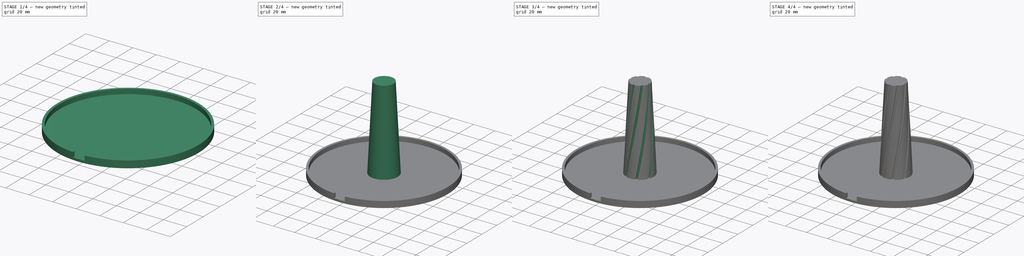
[diagram: build sequence overview — one tinted view per stage of 4, left to right]
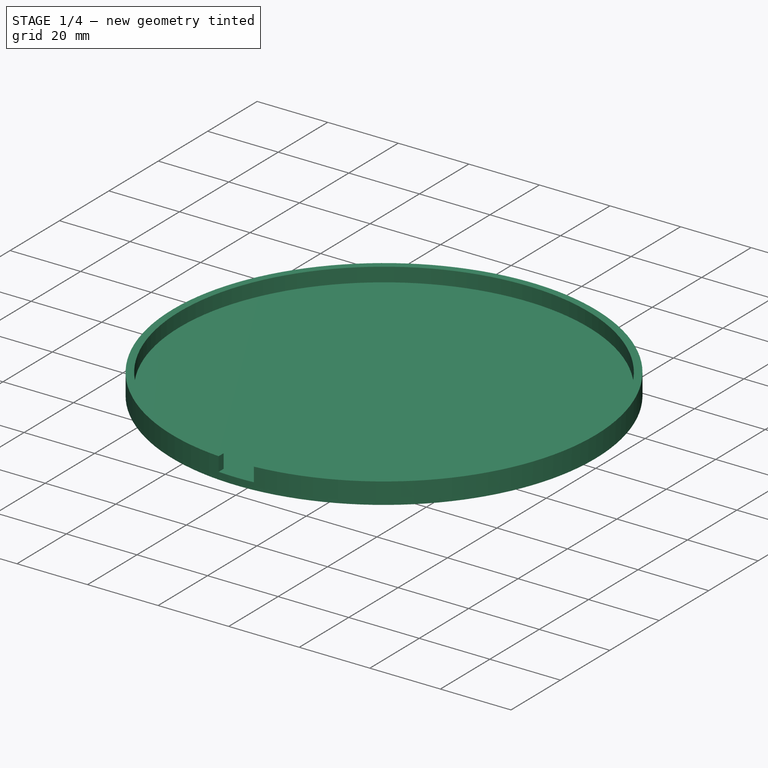
[diagram: stage 1 of 4 — iso view after this stage's code; geometry added in this stage tinted green]
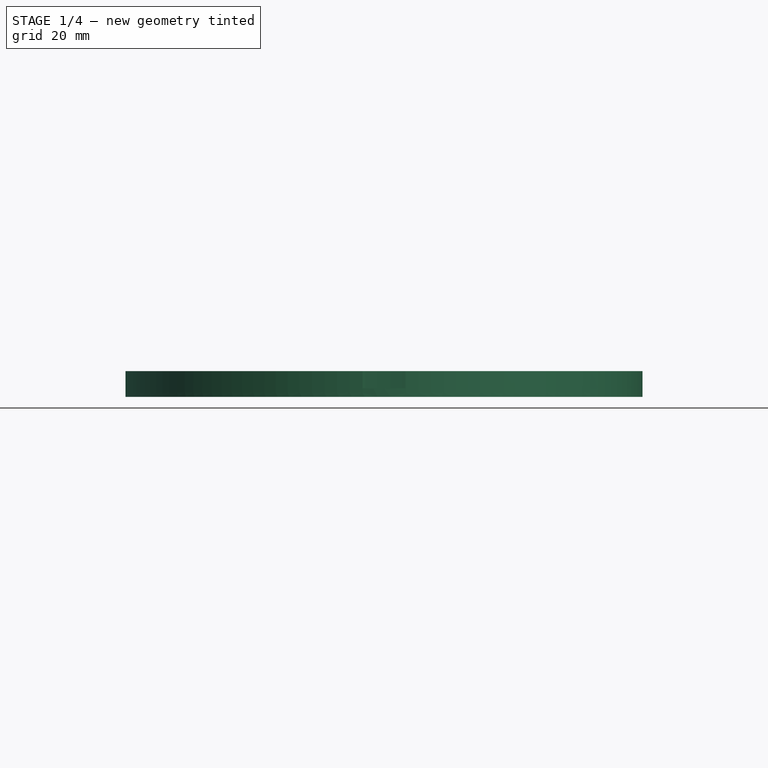
[diagram: stage 1 of 4 — front view after this stage's code; geometry added in this stage tinted green]
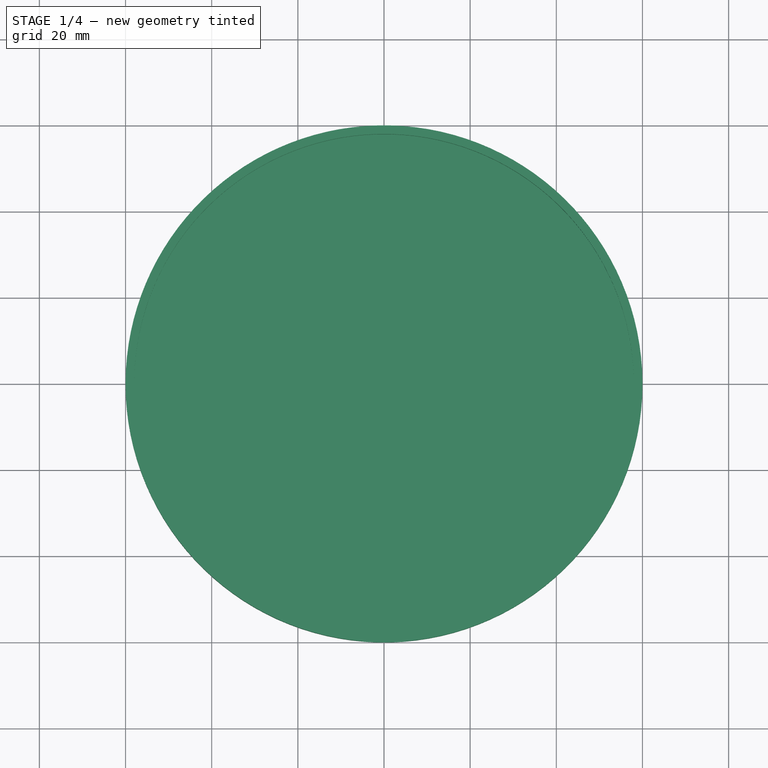
[diagram: stage 1 of 4 — top view after this stage's code; geometry added in this stage tinted green]
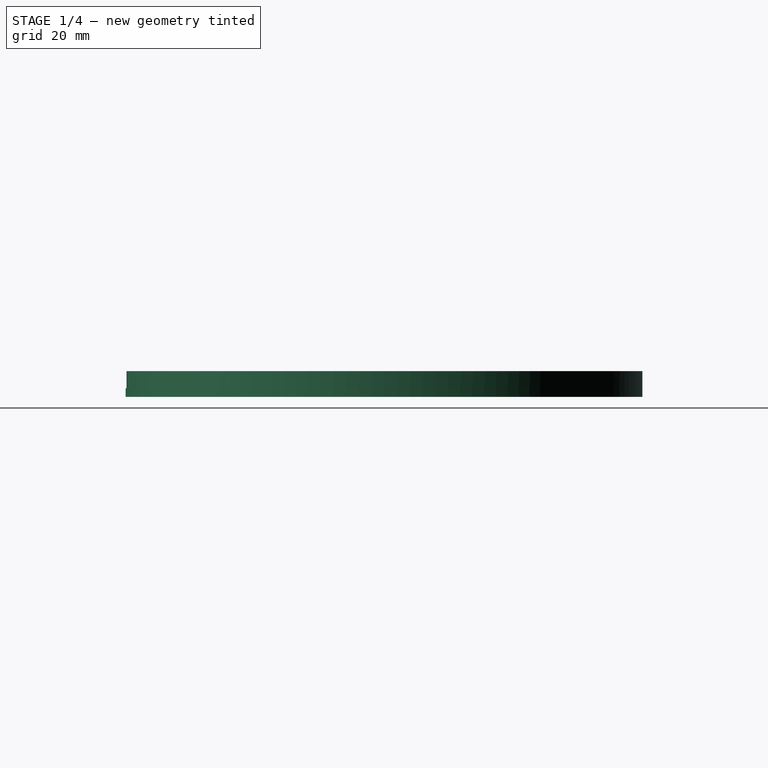
[diagram: stage 1 of 4 — right view after this stage's code; geometry added in this stage tinted green]
FCSTD DOCUMENT  (FreeCAD 2023.131R26244 +5365 (Git))
Label: Chemistry Glassware Drying Stand
License: All rights reserved
LicenseURL: http://en.wikipedia.org/wiki/All_rights_reserved
objects: Sketcher::SketchObject×6, PartDesign::Pad×4, PartDesign::Body×2, Spreadsheet::Sheet×1, PartDesign::AdditiveCone×1, PartDesign::SubtractiveHelix×1, PartDesign::PolarPattern×1, PartDesign::SubtractiveCone×1, PartDesign::Hole×1, PartDesign::Fillet×1
note: 44 computed .brp shape members not serialized (recipe doc carries the construction recipe); baked Part::Feature solids carry a one-line shape summary decoded from their .brp

FEATURE [Sketcher::SketchObject] Sketch
  ArcFitTolerance = 1e-06
  AttachmentSupport = -> [XY_Plane]
  ExternalBSplineMaxDegree = 5
  ExternalBSplineTolerance = 0.0001
  FullyConstrained = true
  InternalTolerance = 1e-06
  InvalidShape = false
  MakeInternals = false
  MapMode = 5
  Support = -> [XY_Plane]
  TreeRank = 12
  ValidateShape = true
  expr: Constraints[1] = <<Parameters>>.Base_Diameter
  sketch-geometry (1):
    g0: Circle CenterX=0 CenterY=0 CenterZ=0 NormalX=0 NormalY=0 NormalZ=1 AngleXU=0 Radius=60
  constraints (2):
    c: Coincident(g0,g-1)
    c: Diameter(g0) = 120
FEATURE [Spreadsheet::Sheet] Spreadsheet  label="Parameters"
  PythonMode = false
  ShowCells = 0
  TreeRank = 10
  cells = A2=Base Diameter; B2(Base_Diameter)=120; C2=This should be wide enough that the inverted glassware doesn't tip over.; F2=Top Diameter; G2=Bottom Diameter; H2=Height; A3=Wall Thickness; B3(Wall_Thickness)=1; C3=1mm should be considered the thinnest. Other thicknesses might be useful.; E3=24/40 Ground Taper; F3=18; G3=26; H3=80; A4=Side Wall Height; B4(Side_Wall_Height)=4; C4=The wall around the perimeter of the base to keep water from going everywhere.; A5=Side Wall Width; B5(Side_Wall_Width)=2; C5=Adjust this if the side wall delaminates from the base during printing.; A6=Drain Opening Width; B6(Drain_Opening_Width)=10; C6=The width of the opening in the side walls to let the water drain out.; A7=Cone Bottom Diameter; B7(Cone_Bottom_Diameter)=26; C7=Slightly bigger than the largest opening in the glassware you  plan to use.; A8=Cone Top Diameter; B8(Cone_Top_Diameter)=18; C8=Slightly smallerr than the smallest opening in the glassware you  plan to use.; A9=Cone Height; B9(Cone_Height)=80; C9=Many values will work here. The bigger the difference in the base and top of the code should result in a taller cone.; A10=Cone Angle; B10(Cone_Angle)=5; C10=Adjust until all drainage slots are visible from top to bottom.; A11=Drainage Slot Count; B11(Drainage_Slot_Count)=8; C11=The number of drainage slots in the cone.; A12=Draining Hole Diameter; B12(Draining_Slot_Diameter)=2; C12=The size of the hole that creates the drainage slots.; A13=Thread Width; B13(Thread_Width)=10; C13=More-or-less determines the size of the slots along the length of the cone.; A14=Peg Diameter; B14(Peg_Diameter)=15; A15=Peg Length; B15(Peg_Length)=15
FEATURE [PartDesign::Pad] Pad  label="Base Body"
  AddSubType = 0
  AlongSketchNormal = false
  AutoTaperInnerAngle = true
  CheckUpToFaceLimits = true
  ClaimChildren = false
  Direction = (0,0,1)
  Fit = 0
  FitJoin = 0
  InnerFit = 0
  InnerFitJoin = 0
  InvalidShape = false
  Length = 2
  Length2 = 100
  Linearize = true
  NewSolid = false
  Profile = -> Sketch
  Suppress = false
  TaperInnerAngle = 0
  TaperInnerAngleRev = 0
  TreeRank = 13
  Type = 0
  ValidateShape = true
  _ProfileBasedVersion = 1
  expr: Length = max(2, <<Parameters>>.Wall_Thickness)
FEATURE [Sketcher::SketchObject] Sketch001
  ArcFitTolerance = 1e-06
  ExternalBSplineMaxDegree = 5
  ExternalBSplineTolerance = 0.0001
  FullyConstrained = true
  InternalTolerance = 1e-06
  InvalidShape = false
  MakeInternals = false
  MapMode = 5
  Placement = pos=(0,0,1) rot=(0,0,1;0rad)
  TreeRank = 15
  ValidateShape = true
  expr: Constraints[2] = <<Parameters>>.Base_Diameter - 2 * <<Parameters>>.Side_Wall_Width
  expr: Constraints[3] = <<Parameters>>.Base_Diameter
  expr: Constraints[6] = <<Parameters>>.Drain_Opening_Width / 2
  expr: Constraints[7] = <<Parameters>>.Drain_Opening_Width / 2
  sketch-geometry (4):
    g0: ArcOfCircle CenterX=0 CenterY=0 CenterZ=0 NormalX=0 NormalY=0 NormalZ=1 AngleXU=0 Radius=58 StartAngle=4.7987 EndAngle=10.9093
    g1: ArcOfCircle CenterX=0 CenterY=0 CenterZ=0 NormalX=0 NormalY=0 NormalZ=1 AngleXU=0 Radius=60 StartAngle=4.79582 EndAngle=10.9121
    g2: LineSegment StartX=5 StartY=-57.7841 StartZ=0 EndX=5 EndY=-59.7913 EndZ=0
    g3: LineSegment StartX=-5 StartY=-57.7841 StartZ=0 EndX=-5 EndY=-59.7913 EndZ=0
  constraints (12):
    c: Coincident(g0,g-1)
    c: Coincident(g1,g0)
    c: Diameter(g0) = 116
    c: Diameter(g1) = 120
    c: Vertical(g2)
    c: Vertical(g3)
    c: DistanceX(g3,g0) = 5
    c: DistanceX(g0,g2) = 5
    c: Coincident(g1,g3)
    c: Coincident(g1,g2)
    c: Coincident(g0,g3)
    c: Coincident(g0,g2)
FEATURE [PartDesign::Pad] Pad001  label="Side Wall"
  AddSubType = 0
  AlongSketchNormal = false
  AutoTaperInnerAngle = true
  BaseFeature = -> Pad
  CheckUpToFaceLimits = true
  ClaimChildren = false
  Direction = (0,0,1)
  Fit = 0
  FitJoin = 0
  InnerFit = 0
  InnerFitJoin = 0
  InvalidShape = false
  Length = 5
  Length2 = 100
  Linearize = true
  NewSolid = false
  Profile = -> Sketch001
  Suppress = false
  TaperInnerAngle = 0
  TaperInnerAngleRev = 0
  TreeRank = 22
  Type = 0
  ValidateShape = true
  _ProfileBasedVersion = 1
  expr: Length = <<Parameters>>.Wall_Thickness + <<Parameters>>.Side_Wall_Height
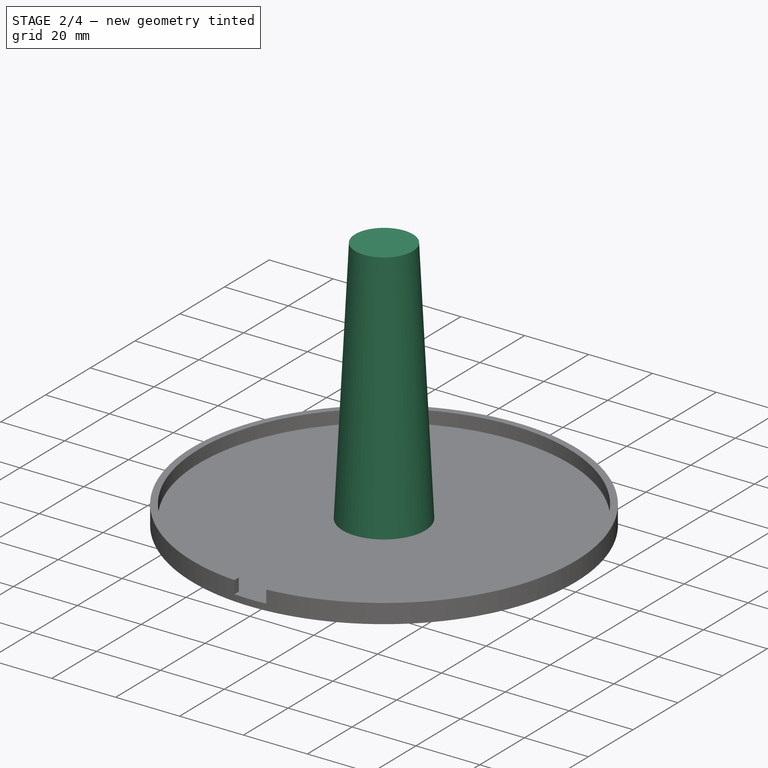
[diagram: stage 2 of 4 — iso view after this stage's code; geometry added in this stage tinted green]
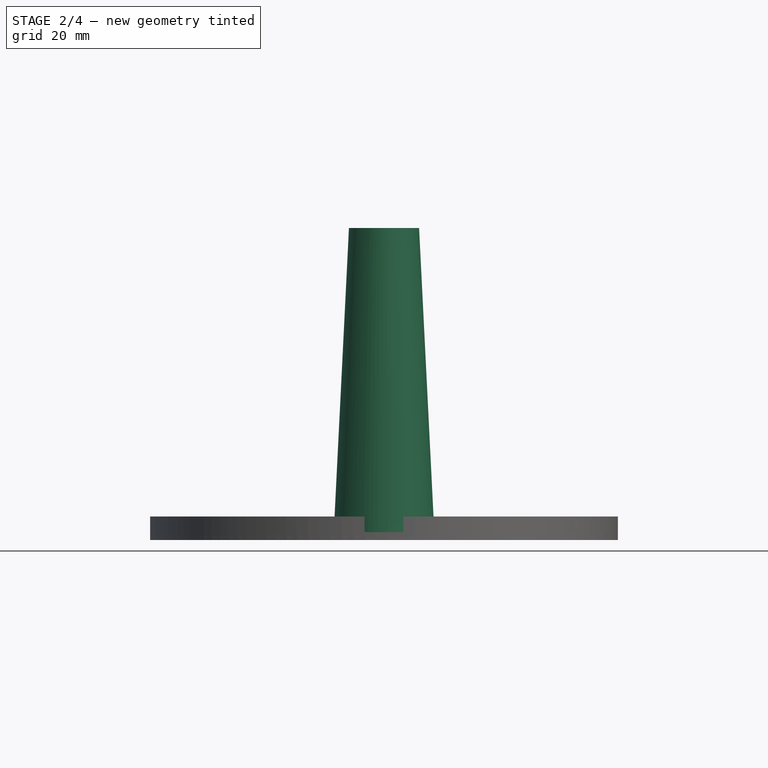
[diagram: stage 2 of 4 — front view after this stage's code; geometry added in this stage tinted green]
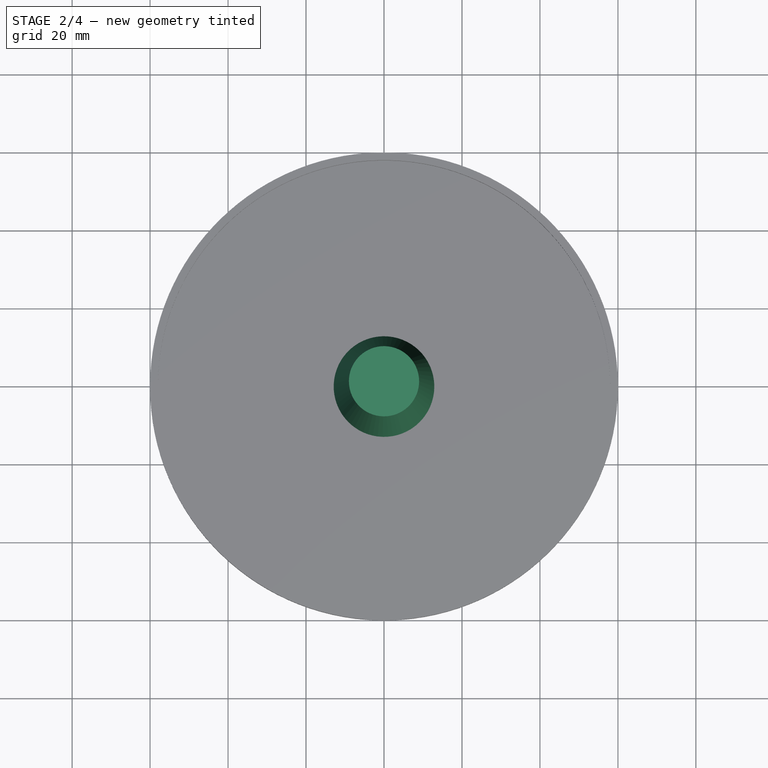
[diagram: stage 2 of 4 — top view after this stage's code; geometry added in this stage tinted green]
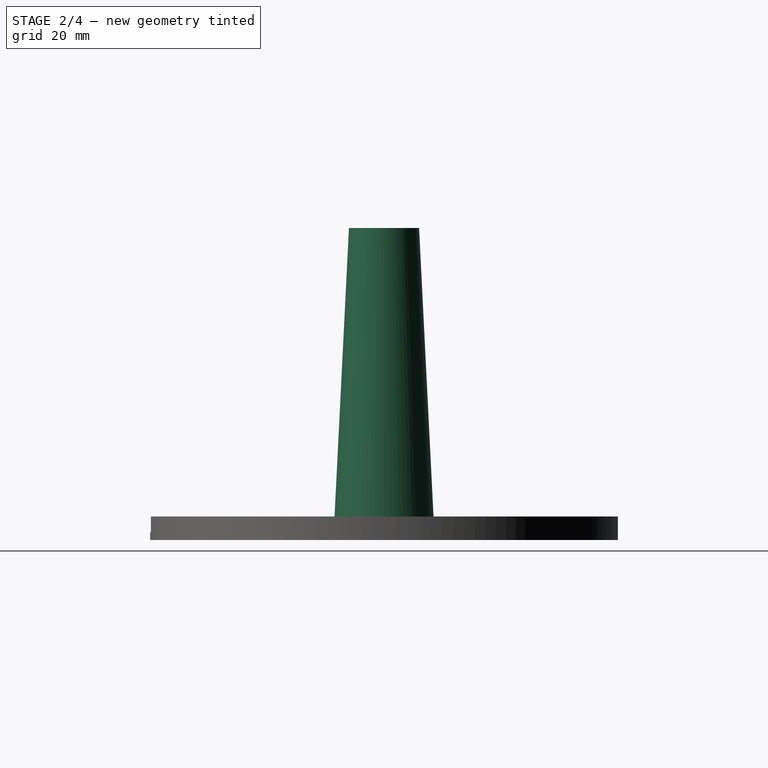
[diagram: stage 2 of 4 — right view after this stage's code; geometry added in this stage tinted green]
FEATURE [Sketcher::SketchObject] Sketch002
  ArcFitTolerance = 1e-06
  AttachmentSupport = -> [Pad001]
  ExternalBSplineMaxDegree = 5
  ExternalBSplineTolerance = 0.0001
  FullyConstrained = true
  InternalTolerance = 1e-06
  InvalidShape = false
  MakeInternals = false
  MapMode = 5
  Placement = pos=(0,0,2) rot=(0,0,1;0rad)
  Support = -> [Pad001]
  TreeRank = 23
  ValidateShape = true
  expr: Constraints[1] = <<Parameters>>.Peg_Diameter
  sketch-geometry (1):
    g0: Circle CenterX=0 CenterY=0 CenterZ=0 NormalX=0 NormalY=0 NormalZ=1 AngleXU=0 Radius=7.5
  constraints (2):
    c: Coincident(g0,g-1)
    c: Diameter(g0) = 15
FEATURE [PartDesign::Pad] Pad002  label="Peg"
  AddSubType = 0
  AlongSketchNormal = false
  AutoTaperInnerAngle = true
  BaseFeature = -> Pad001
  CheckUpToFaceLimits = true
  ClaimChildren = false
  Direction = (0,0,1)
  Fit = 0
  FitJoin = 0
  InnerFit = 0
  InnerFitJoin = 0
  InvalidShape = false
  Length = 15
  Length2 = 100
  Linearize = true
  NewSolid = false
  Profile = -> Sketch002
  Suppress = false
  TaperInnerAngle = 0
  TaperInnerAngleRev = 0
  TreeRank = 24
  Type = 0
  ValidateShape = true
  _ProfileBasedVersion = 1
  expr: Length = <<Parameters>>.Peg_Length
FEATURE [PartDesign::AdditiveCone] Cone  label="Cone Body"
  AddSubType = 0
  Angle = 360
  AttacherType = Attacher::AttachEngine3D
  AttachmentSupport = -> [XY_Plane001]
  Height = 80
  InvalidShape = false
  MapMode = 5
  NewSolid = false
  Radius1 = 13
  Radius2 = 9
  Support = -> [XY_Plane001]
  Suppress = false
  TreeRank = 35
  ValidateShape = true
  expr: Height = <<Parameters>>.Cone_Height
  expr: Radius1 = <<Parameters>>.Cone_Bottom_Diameter / 2
  expr: Radius2 = <<Parameters>>.Cone_Top_Diameter / 2
FEATURE [PartDesign::Body] Body001  label="Cone"
  AutoGroupSolids = false
  ClaimAllChildren = false
  ExportMode = 0
  Group = -> [Cone,Sketch005,Helix,PolarPattern,Cone001,Sketch006,Pad003,Sketch007,Hole]
  InvalidShape = false
  Origin = -> Origin001
  Tip = -> Hole
  TreeRank = 34
  ValidateShape = true
  _ExportChildren = -> [Cone,Helix,PolarPattern,Cone001,Pad003,Hole]
  _GroupVersion = 1
FEATURE [PartDesign::Fillet] Fillet
  AddSubType = 0
  Base = -> Pad002 [Face12]
  BaseFeature = -> Pad002
  InvalidShape = false
  NewSolid = false
  Radius = 1
  SupportTransform = false
  Suppress = false
  TreeRank = 49
  ValidateShape = true
FEATURE [PartDesign::Body] Body  label="Base"
  AutoGroupSolids = false
  ClaimAllChildren = false
  ExportMode = 0
  Group = -> [Sketch,Pad,Sketch001,Pad001,Sketch002,Pad002,Fillet]
  InvalidShape = false
  Origin = -> Origin
  Tip = -> Fillet
  TreeRank = 11
  ValidateShape = true
  _ExportChildren = -> [Pad,Pad001,Pad002,Fillet]
  _GroupVersion = 1
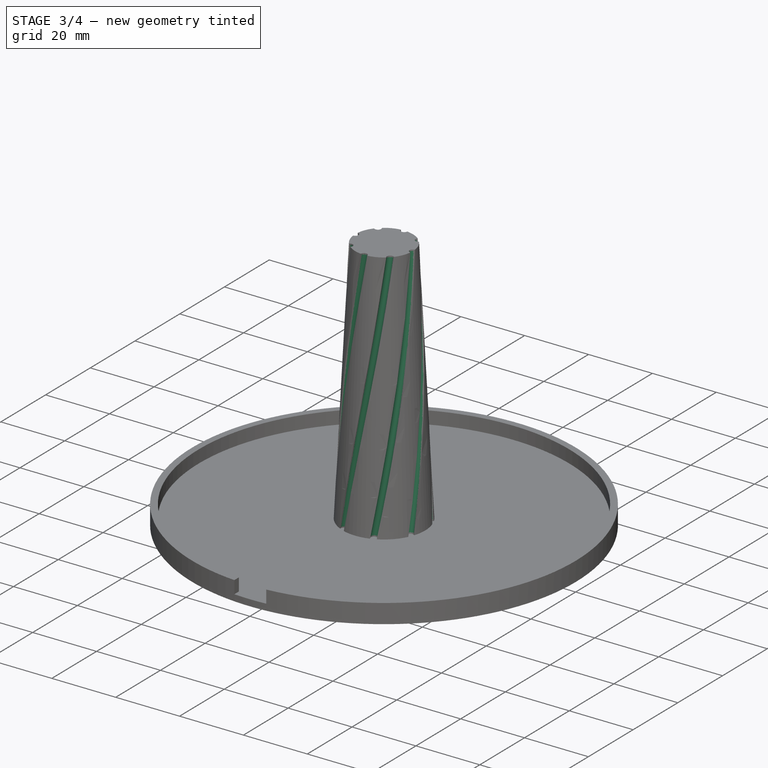
[diagram: stage 3 of 4 — iso view after this stage's code; geometry added in this stage tinted green]
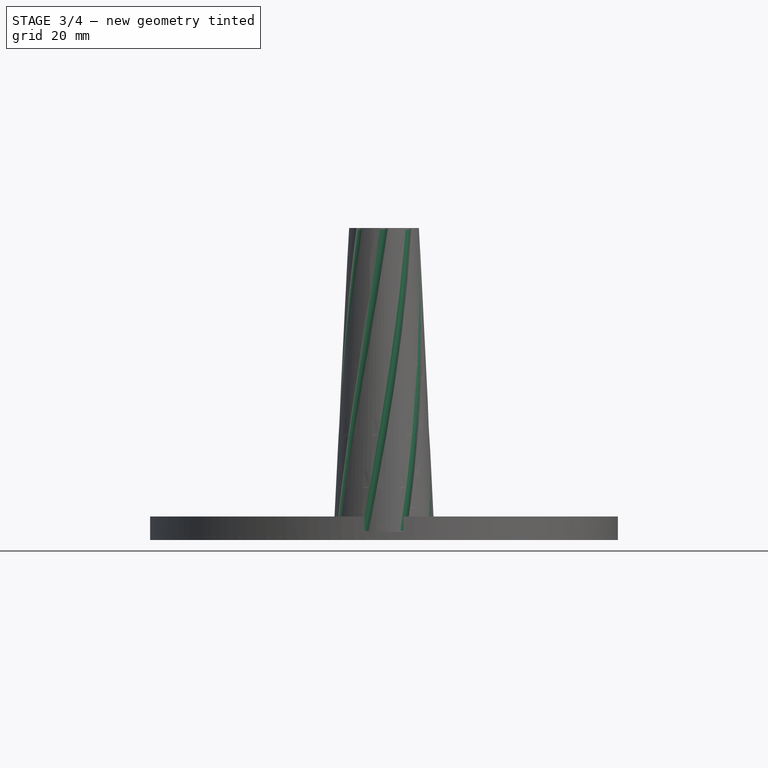
[diagram: stage 3 of 4 — front view after this stage's code; geometry added in this stage tinted green]
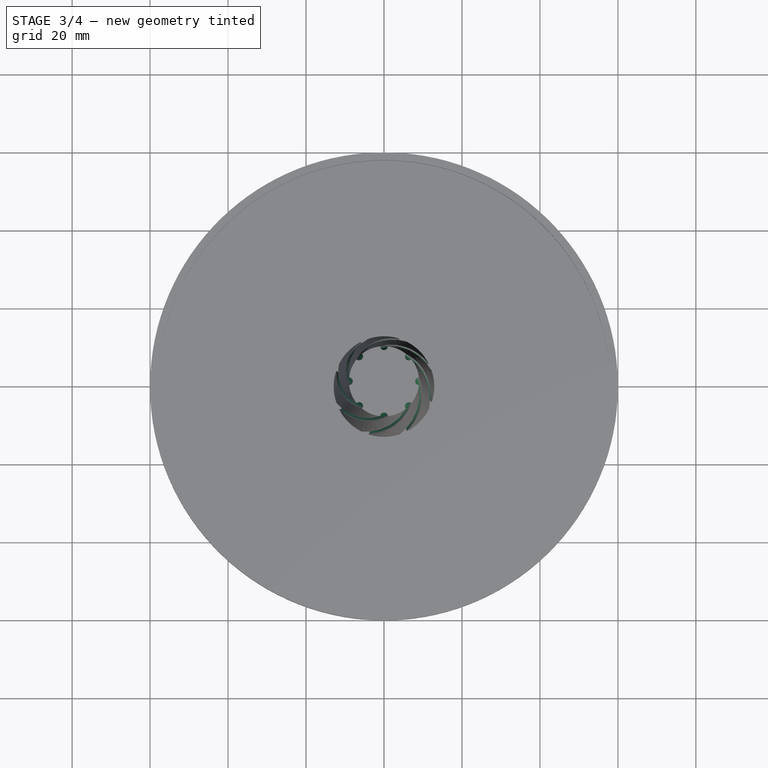
[diagram: stage 3 of 4 — top view after this stage's code; geometry added in this stage tinted green]
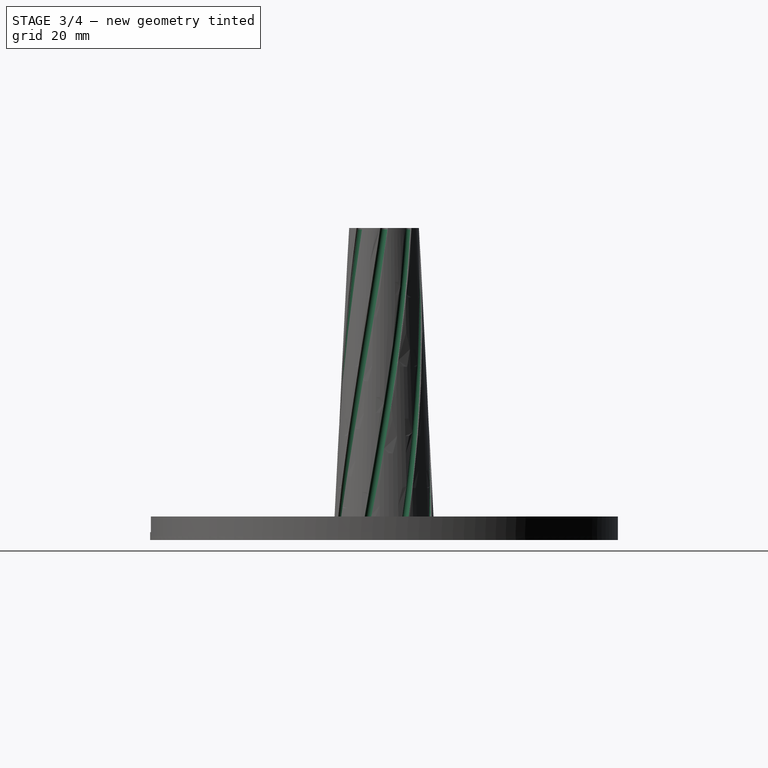
[diagram: stage 3 of 4 — right view after this stage's code; geometry added in this stage tinted green]
FEATURE [Sketcher::SketchObject] Sketch005
  ArcFitTolerance = 1e-06
  ExternalBSplineMaxDegree = 5
  ExternalBSplineTolerance = 0.0001
  FullyConstrained = true
  InternalTolerance = 1e-06
  InvalidShape = false
  MakeInternals = false
  MapMode = 5
  Placement = pos=(0,0,80) rot=(0,0,1;0rad)
  TreeRank = 41
  ValidateShape = true
  expr: Placement.Base.z = <<Parameters>>.Cone_Height
  expr: Constraints[1] = <<Parameters>>.Cone_Top_Diameter / 2
  expr: Constraints[2] = <<Parameters>>.Draining_Slot_Diameter
  sketch-geometry (1):
    g0: Circle CenterX=9 CenterY=0 CenterZ=0 NormalX=0 NormalY=0 NormalZ=1 AngleXU=0 Radius=1
  constraints (3):
    c: PointOnObject(g0,g-1)
    c: DistanceX(g-1,g0) = 9
    c: Diameter(g0) = 2
FEATURE [PartDesign::SubtractiveHelix] Helix
  AddSubType = 1
  Angle = 5
  Axis = (-3e-16,3e-16,1)
  Base = (0,0,0)
  BaseFeature = -> Cone
  ClaimChildren = false
  Fit = 0
  FitJoin = 0
  Growth = 0
  HasBeenEdited = true
  Height = 85
  InnerFit = 0
  InnerFitJoin = 0
  InvalidShape = false
  LeftHanded = false
  Linearize = true
  Mode = 0
  NewSolid = false
  Outside = false
  Pitch = 400
  Profile = -> Sketch005
  ReferenceAxis = -> Z_Axis001
  Reversed = true
  Suppress = false
  TreeRank = 42
  Turns = 0.2125
  ValidateShape = true
  _ProfileBasedVersion = 1
  expr: Angle = <<Parameters>>.Cone_Angle
  expr: Height = <<Parameters>>.Cone_Height + 5
  expr: Pitch = <<Parameters>>.Cone_Height * 5
FEATURE [PartDesign::PolarPattern] PolarPattern
  AddSubType = 0
  Angle = 360
  Axis = -> Sketch005 [N_Axis]
  BaseFeature = -> Helix
  CopyShape = false
  InvalidShape = false
  NewSolid = false
  Occurrences = 8
  OriginalSubs = -> [Helix]
  Originals = -> [Helix]
  ParallelTransform = true
  SubTransform = true
  Suppress = false
  TreeRank = 43
  ValidateShape = true
  _Version = 3
  expr: Occurrences = <<Parameters>>.Drainage_Slot_Count
FEATURE [PartDesign::SubtractiveCone] Cone001  label="Cone Hollow"
  AddSubType = 1
  Angle = 360
  AttacherType = Attacher::AttachEngine3D
  AttachmentOffset = pos=(0,0,1) rot=(0,0,1;0rad)
  AttachmentSupport = -> [XY_Plane001]
  BaseFeature = -> PolarPattern
  Height = 78
  InvalidShape = false
  MapMode = 5
  NewSolid = false
  Placement = pos=(0,0,1) rot=(0,0,1;0rad)
  Radius1 = 9
  Radius2 = 5
  Support = -> [XY_Plane001]
  Suppress = false
  TreeRank = 44
  ValidateShape = true
  expr: AttachmentOffset.Base.z = <<Parameters>>.Wall_Thickness
  expr: Height = <<Parameters>>.Cone_Height - <<Parameters>>.Wall_Thickness * 2
  expr: Radius1 = <<Parameters>>.Cone_Bottom_Diameter / 2 - <<Parameters>>.Draining_Slot_Diameter - <<Parameters>>.Wall_Thickness * 2
  expr: Radius2 = <<Parameters>>.Cone_Top_Diameter / 2 - <<Parameters>>.Draining_Slot_Diameter - <<Parameters>>.Wall_Thickness * 2
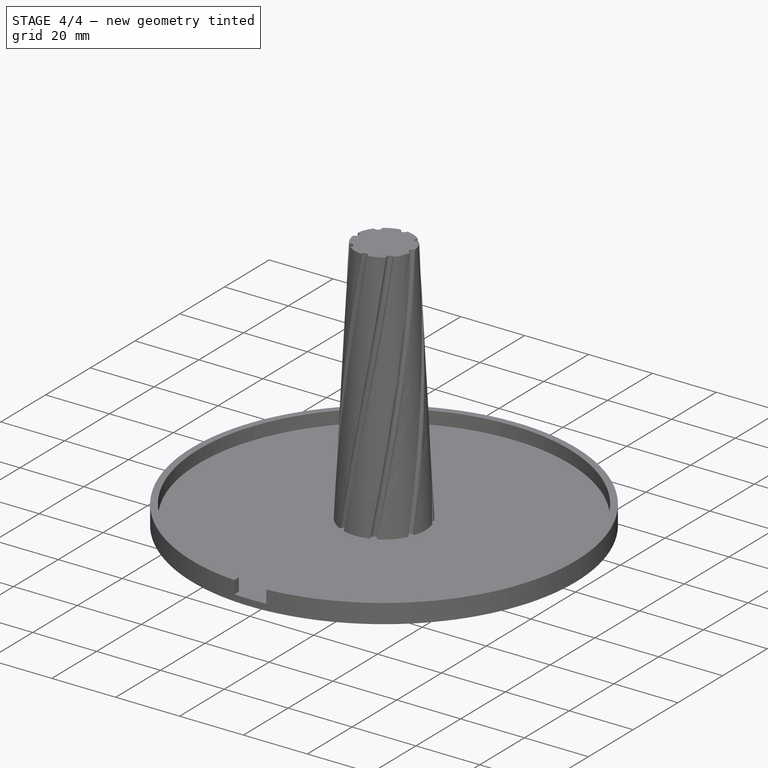
[diagram: stage 4 of 4 — iso view after this stage's code; geometry added in this stage tinted green]
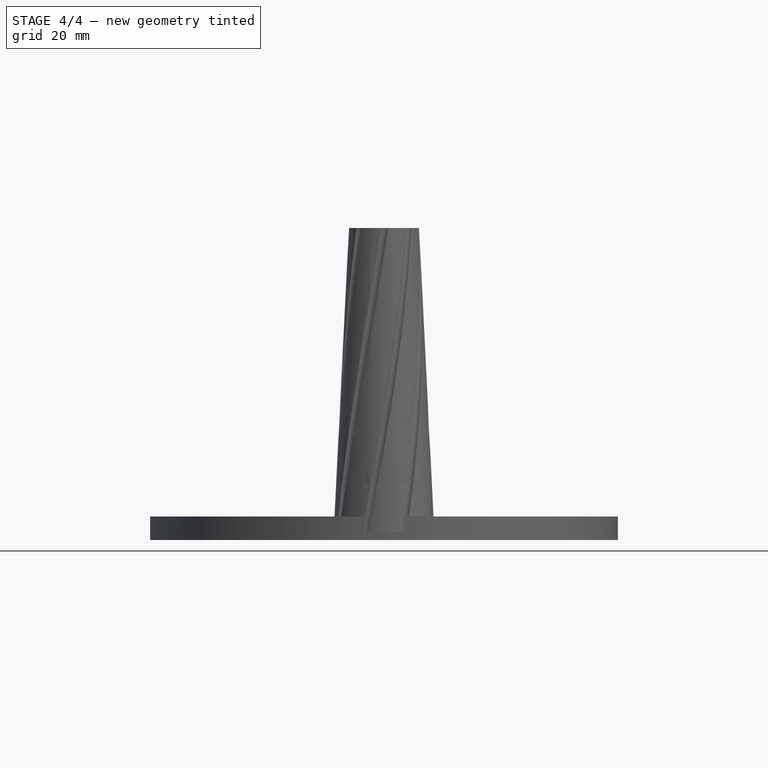
[diagram: stage 4 of 4 — front view after this stage's code; geometry added in this stage tinted green]
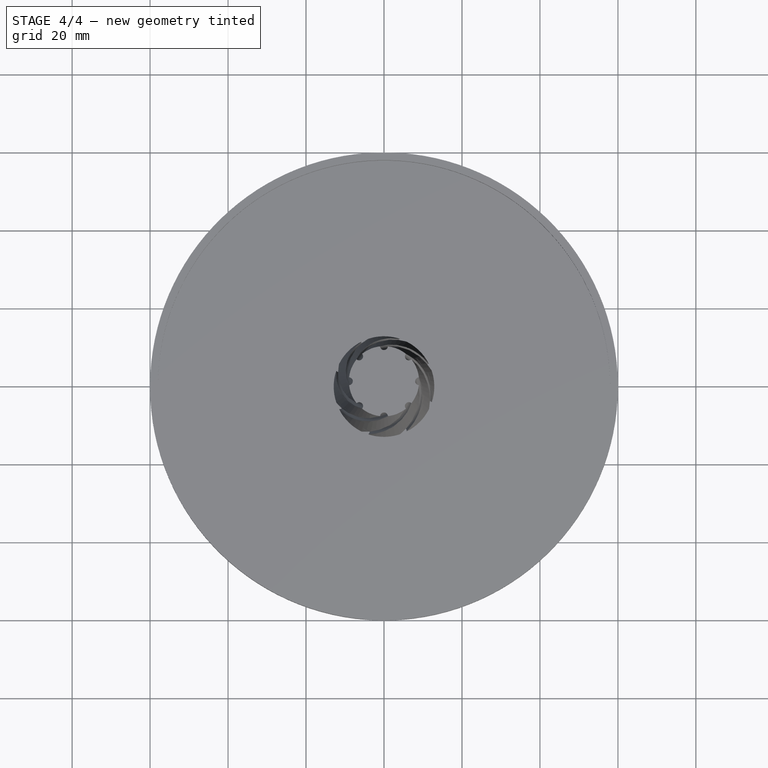
[diagram: stage 4 of 4 — top view after this stage's code; geometry added in this stage tinted green]
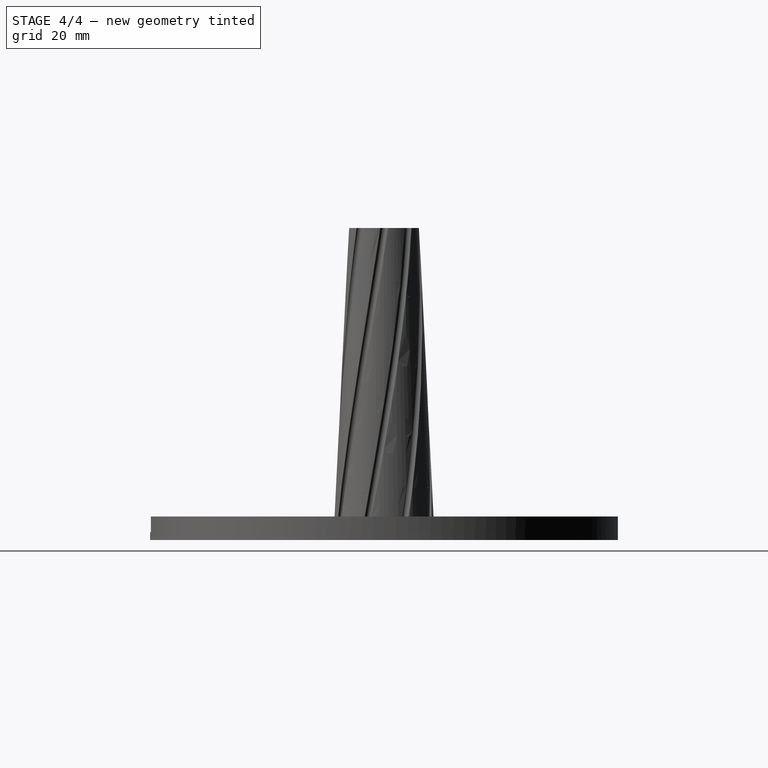
[diagram: stage 4 of 4 — right view after this stage's code; geometry added in this stage tinted green]
FEATURE [Sketcher::SketchObject] Sketch006
  ArcFitTolerance = 1e-06
  AttachmentSupport = -> [Cone001]
  ExternalBSplineMaxDegree = 5
  ExternalBSplineTolerance = 0.0001
  FullyConstrained = true
  InternalTolerance = 1e-06
  InvalidShape = false
  MakeInternals = false
  MapMode = 5
  Placement = pos=(0,0,0) rot=(1,0,0;3.14159rad)
  Support = -> [Cone001]
  TreeRank = 45
  ValidateShape = true
  expr: Constraints[1] = Spreadsheet.Peg_Diameter + 2 * <<Parameters>>.Wall_Thickness
  sketch-geometry (1):
    g0: Circle CenterX=0 CenterY=0 CenterZ=0 NormalX=0 NormalY=0 NormalZ=1 AngleXU=0 Radius=8.5
  constraints (2):
    c: Coincident(g0,g-1)
    c: Diameter(g0) = 17
FEATURE [PartDesign::Pad] Pad003  label="Peg Structure"
  AddSubType = 0
  AlongSketchNormal = false
  AutoTaperInnerAngle = true
  BaseFeature = -> Cone001
  CheckUpToFaceLimits = true
  ClaimChildren = false
  Direction = (0,0,-1)
  Fit = 0
  FitJoin = 0
  InnerFit = 0
  InnerFitJoin = 0
  InvalidShape = false
  Length = 17
  Length2 = 100
  Linearize = true
  NewSolid = false
  Profile = -> Sketch006
  Reversed = true
  Suppress = false
  TaperInnerAngle = 0
  TaperInnerAngleRev = 0
  TreeRank = 46
  Type = 0
  ValidateShape = true
  _ProfileBasedVersion = 1
  expr: Length = <<Parameters>>.Peg_Length + <<Parameters>>.Wall_Thickness + 1
FEATURE [Sketcher::SketchObject] Sketch007
  ArcFitTolerance = 1e-06
  AttachmentSupport = -> [Pad003]
  ExternalBSplineMaxDegree = 5
  ExternalBSplineTolerance = 0.0001
  FullyConstrained = true
  InternalTolerance = 1e-06
  InvalidShape = false
  MakeInternals = false
  MapMode = 5
  Placement = pos=(0,0,0) rot=(1,0,0;3.14159rad)
  Support = -> [Pad003]
  TreeRank = 47
  ValidateShape = true
  expr: Constraints[1] = <<Parameters>>.Peg_Diameter
  sketch-geometry (1):
    g0: Circle CenterX=0 CenterY=0 CenterZ=0 NormalX=0 NormalY=0 NormalZ=1 AngleXU=0 Radius=7.5
  constraints (2):
    c: Coincident(g0,g-1)
    c: Diameter(g0) = 15
FEATURE [PartDesign::Hole] Hole
  AddSubType = 1
  BaseFeature = -> Pad003
  ClaimChildren = false
  CustomThreadClearance = 0
  Depth = 16
  DepthType = 0
  Diameter = 15.2
  DrillForDepth = false
  DrillPoint = 0
  DrillPointAngle = 118
  Fit = 0
  FitJoin = 0
  HoleCutCountersinkAngle = 90
  HoleCutCustomValues = false
  HoleCutDepth = 0
  HoleCutDiameter = 15.3
  HoleCutType = 0
  InnerFit = 0
  InnerFitJoin = 0
  InvalidShape = false
  Linearize = true
  ModelThread = false
  NewSolid = false
  Profile = -> Sketch007
  Suppress = false
  Tapered = false
  TaperedAngle = 90
  ThreadClass = 0
  ThreadDepth = 16
  ThreadDepthType = 0
  ThreadDirection = 0
  ThreadFit = 0
  ThreadSize = 0
  ThreadType = 0
  Threaded = false
  TreeRank = 48
  UseCustomThreadClearance = false
  ValidateShape = true
  _ProfileBasedVersion = 1
  expr: Depth = <<Parameters>>.Peg_Length + 1
  expr: Diameter = <<Parameters>>.Peg_Diameter + 0.2
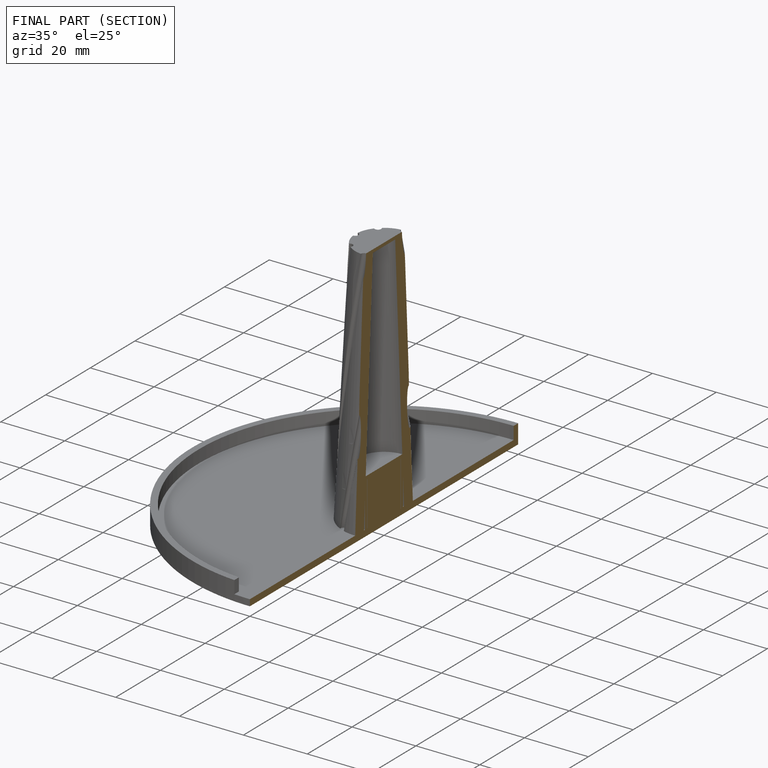
[diagram: finished part — half-section view (interior)]
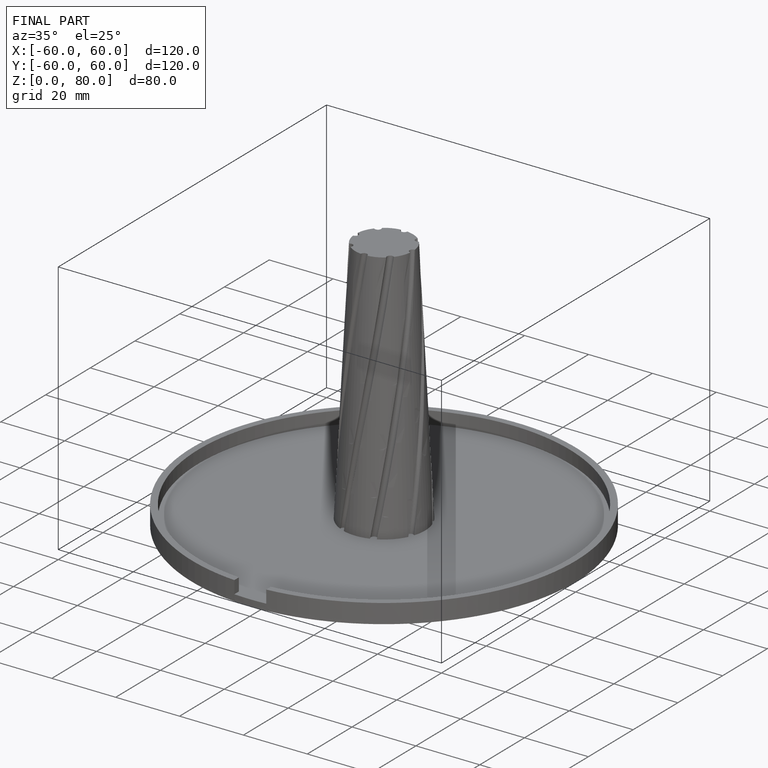
[diagram: finished part — iso view with bounding-box wireframe]
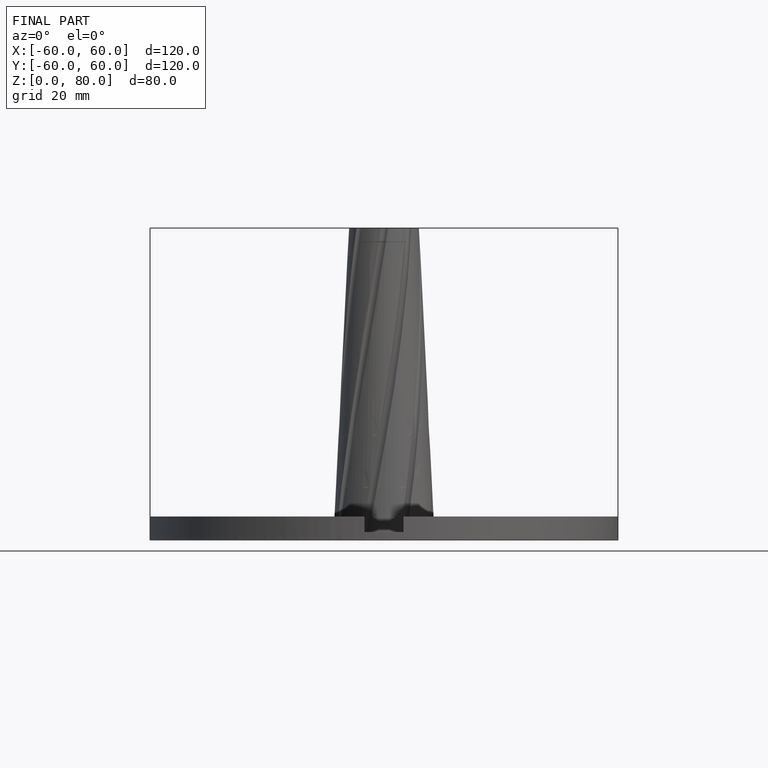
[diagram: finished part — front view with bounding-box wireframe]
